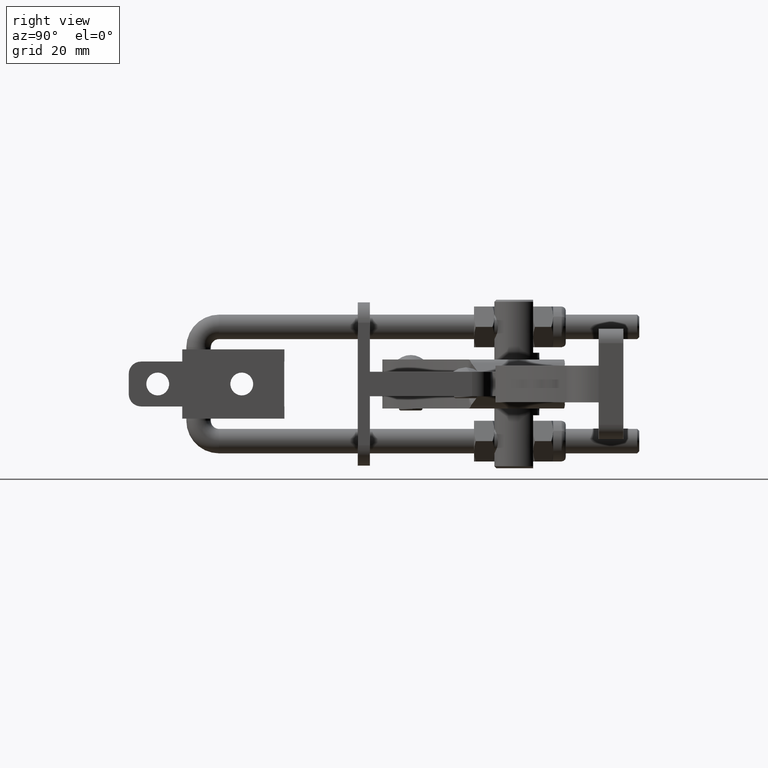
[diagram: clean part render]
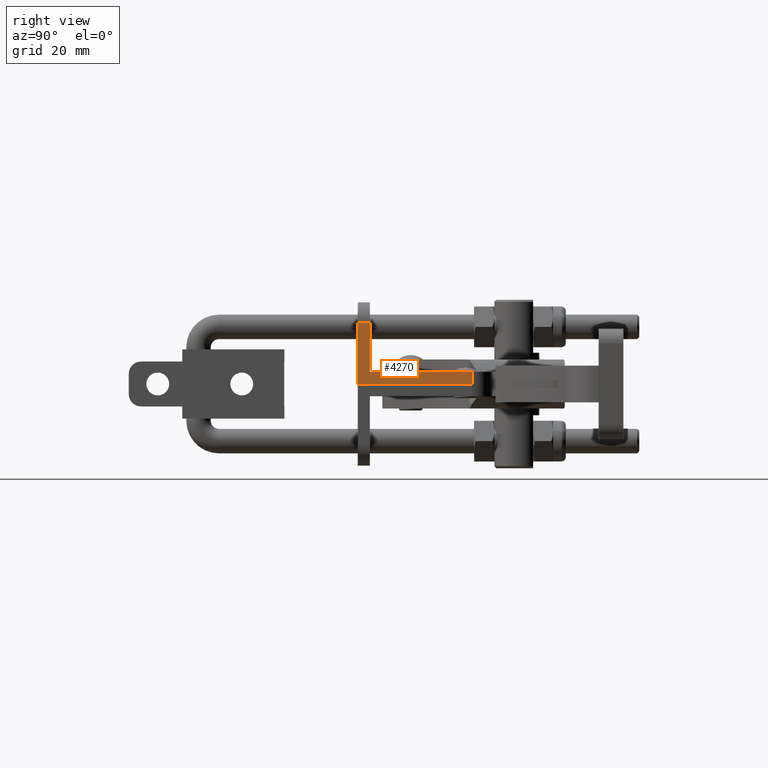
[diagram: same view with one face highlighted and labeled with its STEP entity id]
A machine part, right view. The second image highlights one B-rep face of the part: STEP entity #4270.
In plain terms, the highlighted planar face has unit normal (-1, -0, 0).
Its self-contained STEP definition (entity closure, byte-faithful):
#434 = EDGE_CURVE ( 'NONE', #8458, #5854, #848, .T. ) ;
#804 = EDGE_CURVE ( 'NONE', #4309, #7345, #4997, .T. ) ;
#814 = DIRECTION ( 'NONE',  ( -1.982541115402065700E-015, 1.000000000000000000, -0.0000000000000000000 ) ) ;
#848 = LINE ( 'NONE', #2942, #9436 ) ;
#862 = DIRECTION ( 'NONE',  ( -0.0000000000000000000, -0.0000000000000000000, -1.000000000000000000 ) ) ;
#1011 = DIRECTION ( 'NONE',  ( 1.982541115402065700E-015, -1.000000000000000000, 0.0000000000000000000 ) ) ;
#1152 = ORIENTED_EDGE ( 'NONE', *, *, #1884, .T. ) ;
#1172 = VECTOR ( 'NONE', #862, 1000.000000000000000 ) ;
#1315 = CARTESIAN_POINT ( 'NONE',  ( 0.0000000000000000000, 3.000000000000000000, 15.00000000000001400 ) ) ;
#1428 = LINE ( 'NONE', #9218, #1172 ) ;
#1884 = EDGE_CURVE ( 'NONE', #7546, #9502, #4216, .T. ) ;
#2146 = ORIENTED_EDGE ( 'NONE', *, *, #4959, .T. ) ;
#2186 = DIRECTION ( 'NONE',  ( -1.982541115402065700E-015, 1.000000000000000000, -0.0000000000000000000 ) ) ;
#2260 = CARTESIAN_POINT ( 'NONE',  ( -1.249000902703301100E-013, 27.99999999999999600, 3.000000000000000000 ) ) ;
#2732 = CARTESIAN_POINT ( 'NONE',  ( -5.551115123125782700E-014, 27.99999999999999600, 3.000000000000000000 ) ) ;
#2942 = CARTESIAN_POINT ( 'NONE',  ( 0.0000000000000000000, 3.000000000000000000, 15.00000000000001400 ) ) ;
#3097 = LINE ( 'NONE', #3511, #10016 ) ;
#3170 = ORIENTED_EDGE ( 'NONE', *, *, #804, .F. ) ;
#3481 = EDGE_CURVE ( 'NONE', #7345, #9502, #3097, .T. ) ;
#3511 = CARTESIAN_POINT ( 'NONE',  ( -1.249000902703301100E-013, 27.99999999999999600, 3.000000000000000000 ) ) ;
#3523 = CARTESIAN_POINT ( 'NONE',  ( -5.551115123125782700E-014, 27.99999999999999600, 3.000000000000000000 ) ) ;
#4216 = LINE ( 'NONE', #5027, #9277 ) ;
#4270 = ADVANCED_FACE ( 'NONE', ( #6586 ), #8514, .F. ) ;
#4309 = VERTEX_POINT ( 'NONE', #7635 ) ;
#4498 = VECTOR ( 'NONE', #10394, 1000.000000000000000 ) ;
#4508 = ORIENTED_EDGE ( 'NONE', *, *, #10580, .T. ) ;
#4554 = EDGE_LOOP ( 'NONE', ( #3170, #2146, #10255, #4508, #1152, #5886 ) ) ;
#4754 = LINE ( 'NONE', #9561, #4498 ) ;
#4959 = EDGE_CURVE ( 'NONE', #4309, #8458, #4754, .T. ) ;
#4997 = LINE ( 'NONE', #2732, #6943 ) ;
#5027 = CARTESIAN_POINT ( 'NONE',  ( -5.551115123125782700E-014, 27.99999999999999600, 0.0000000000000000000 ) ) ;
#5854 = VERTEX_POINT ( 'NONE', #6774 ) ;
#5886 = ORIENTED_EDGE ( 'NONE', *, *, #3481, .F. ) ;
#6586 = FACE_OUTER_BOUND ( 'NONE', #4554, .T. ) ;
#6774 = CARTESIAN_POINT ( 'NONE',  ( 0.0000000000000000000, 0.0000000000000000000, 15.00000000000001400 ) ) ;
#6802 = DIRECTION ( 'NONE',  ( -1.000000000000000000, -1.982541115402065700E-015, 0.0000000000000000000 ) ) ;
#6943 = VECTOR ( 'NONE', #2186, 1000.000000000000000 ) ;
#7345 = VERTEX_POINT ( 'NONE', #2260 ) ;
#7546 = VERTEX_POINT ( 'NONE', #9129 ) ;
#7635 = CARTESIAN_POINT ( 'NONE',  ( -5.947623346206205800E-015, 3.000000000000006200, 3.000000000000000000 ) ) ;
#7781 = DIRECTION ( 'NONE',  ( 0.0000000000000000000, -1.000000000000000000, 0.0000000000000000000 ) ) ;
#8458 = VERTEX_POINT ( 'NONE', #1315 ) ;
#8514 = PLANE ( 'NONE',  #9413 ) ;
#8582 = CARTESIAN_POINT ( 'NONE',  ( -1.249000902703301100E-013, 27.99999999999999600, 0.0000000000000000000 ) ) ;
#9129 = CARTESIAN_POINT ( 'NONE',  ( 0.0000000000000000000, 0.0000000000000000000, 0.0000000000000000000 ) ) ;
#9218 = CARTESIAN_POINT ( 'NONE',  ( 0.0000000000000000000, 0.0000000000000000000, 3.000000000000000000 ) ) ;
#9277 = VECTOR ( 'NONE', #814, 1000.000000000000000 ) ;
#9413 = AXIS2_PLACEMENT_3D ( 'NONE', #3523, #6802, #1011 ) ;
#9436 = VECTOR ( 'NONE', #7781, 1000.000000000000000 ) ;
#9502 = VERTEX_POINT ( 'NONE', #8582 ) ;
#9561 = CARTESIAN_POINT ( 'NONE',  ( 0.0000000000000000000, 3.000000000000000000, 0.0000000000000000000 ) ) ;
#10016 = VECTOR ( 'NONE', #10619, 1000.000000000000000 ) ;
#10255 = ORIENTED_EDGE ( 'NONE', *, *, #434, .T. ) ;
#10394 = DIRECTION ( 'NONE',  ( 0.0000000000000000000, 0.0000000000000000000, 1.000000000000000000 ) ) ;
#10580 = EDGE_CURVE ( 'NONE', #5854, #7546, #1428, .T. ) ;
#10619 = DIRECTION ( 'NONE',  ( -0.0000000000000000000, -0.0000000000000000000, -1.000000000000000000 ) ) ;